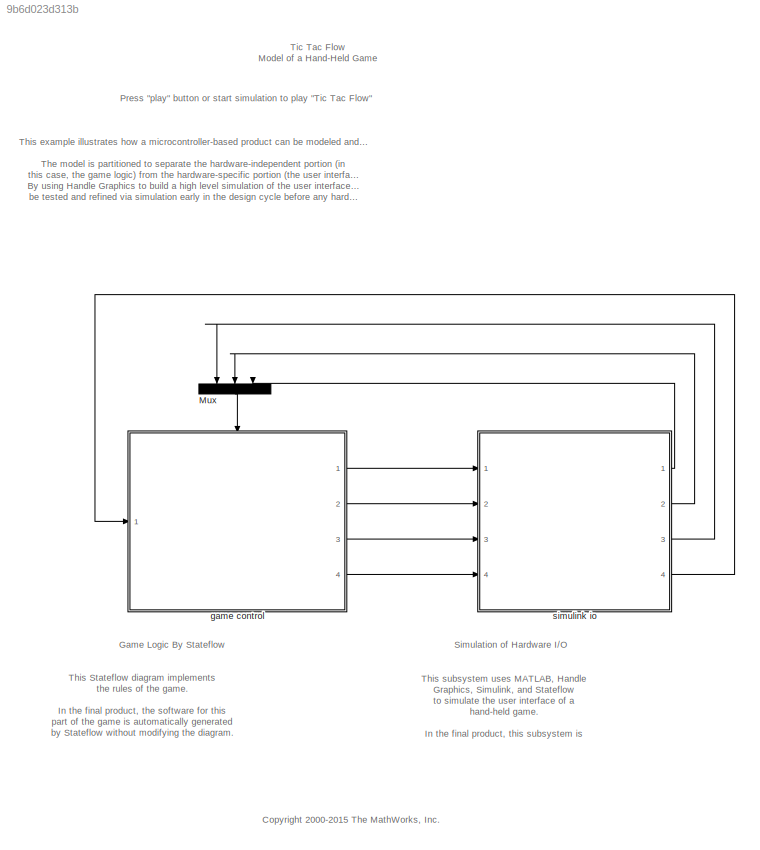
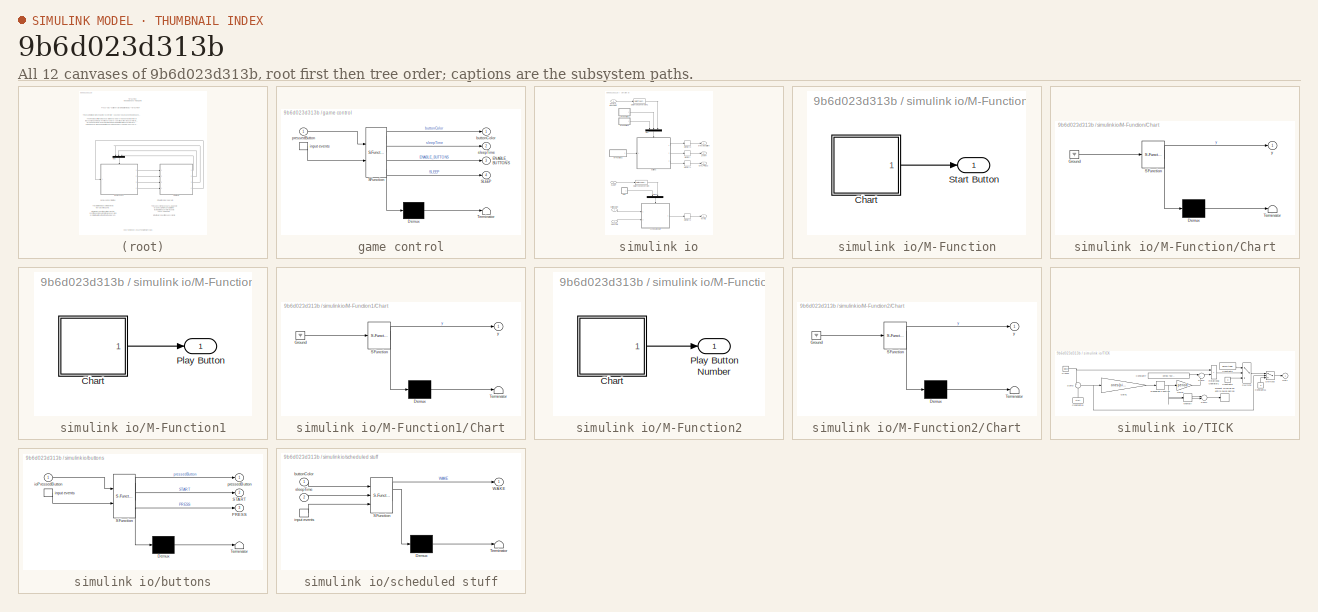
[diagram: thumbnail index - all 12 canvases of the model, root first then tree order]
MODEL slx_9b6d023d313b
KIND model
CONFIG AbsTol = auto
CONFIG EnableMultiTasking = on
CONFIG FixedStep = auto
CONFIG MaxStep = auto
CONFIG MinStep = auto
CONFIG RelTol = 1e-3
CONFIG SampleTimeConstraint = Unconstrained
CONFIG Solver = VariableStepDiscrete
CONFIG SolverName = VariableStepDiscrete
CONFIG StartTime = 0.0
CONFIG StopTime = inf
BLOCK [Mux] Mux
  DisplayOption = bar
  Inputs = 3
  Ports = [3, 1]
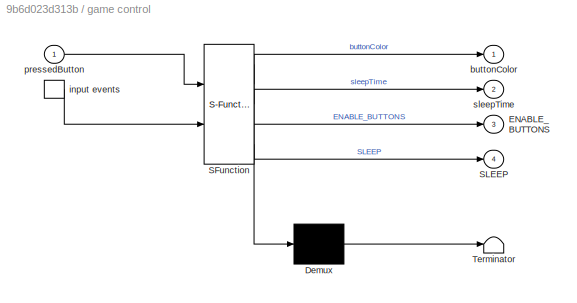
BLOCK [SubSystem] game control
  ErrorFcn = Stateflow.Translate.translate
  PermitHierarchicalResolution = ExplicitOnly
  Ports = [1, 4, 0, 1]
  RequestExecContextInheritance = off
  SFBlockType = Chart
  TreatAsAtomicUnit = on
  Variant = off
BLOCK [Demux] game control/ Demux 
  Outputs = 1
  Ports = [1, 1]
BLOCK [S-Function] game control/ SFunction 
  EnableBusSupport = off
  FunctionName = sf_sfun
  PortCounts = [2 5]
  Ports = [2, 5]
  SFcnIsStateOwnerBlock = off
  SFunctionDeploymentMode = off
  Tag = Stateflow S-Function sf_tictacflow 1
BLOCK [Terminator] game control/ Terminator 
BLOCK [TriggerPort] game control/ input events 
  Ports = [0, 1]
  ShowOutputPort = on
  TriggerType = either
  VariantControl = Variant
BLOCK [Outport] game control/ENABLE_BUTTONS
  IconDisplay = Port number
  Port = 3
BLOCK [Outport] game control/SLEEP
  IconDisplay = Port number
  Port = 4
BLOCK [Outport] game control/buttonColor
  IconDisplay = Port number
BLOCK [Inport] game control/pressedButton
  IconDisplay = Port number
BLOCK [Outport] game control/sleepTime
  IconDisplay = Port number
  Port = 2
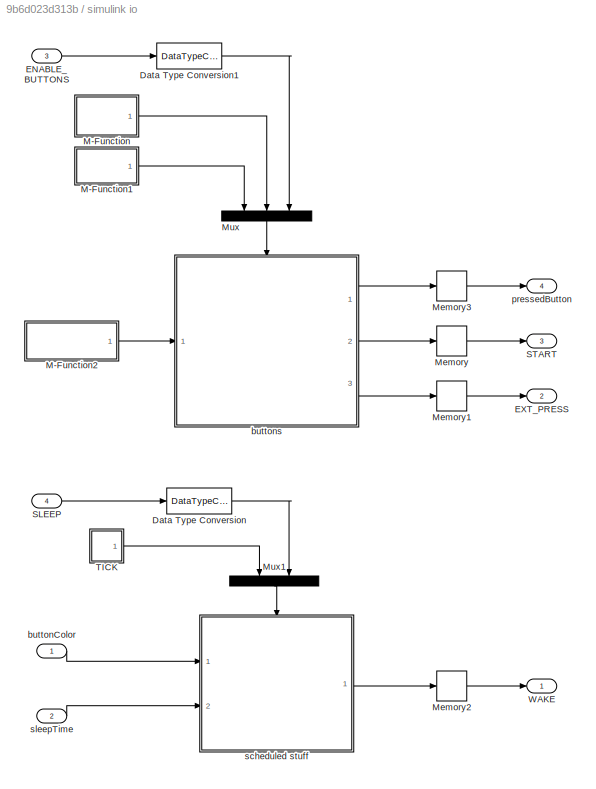
BLOCK [SubSystem] simulink io
  Ports = [4, 4]
  RequestExecContextInheritance = off
  StopFcn = fig = findobj(0, 'Name', 'Tic Tac Flow'); if ishandle(fig); delete(fig); end;
  Variant = off
BLOCK [DataTypeConversion] simulink io/Data Type Conversion
  OutDataTypeStr = double
  RndMeth = Floor
  SaturateOnIntegerOverflow = off
BLOCK [DataTypeConversion] simulink io/Data Type Conversion1
  OutDataTypeStr = double
  RndMeth = Floor
  SaturateOnIntegerOverflow = off
BLOCK [Inport] simulink io/ENABLE_BUTTONS
  IconDisplay = Port number
  Port = 3
BLOCK [Outport] simulink io/EXT_PRESS
  IconDisplay = Port number
  Port = 2
BLOCK [SubSystem] simulink io/M-Function
  Ports = [0, 1]
  RequestExecContextInheritance = off
  Variant = off
BLOCK [SubSystem] simulink io/M-Function/Chart
  ErrorFcn = Stateflow.Translate.translate
  PermitHierarchicalResolution = ExplicitOnly
  Ports = [0, 1]
  RequestExecContextInheritance = off
  SFBlockType = Chart
  TreatAsAtomicUnit = on
  Variant = off
BLOCK [Demux] simulink io/M-Function/Chart/ Demux 
  Outputs = 1
  Ports = [1, 1]
BLOCK [Ground] simulink io/M-Function/Chart/ Ground 
BLOCK [S-Function] simulink io/M-Function/Chart/ SFunction 
  EnableBusSupport = off
  FunctionName = sf_sfun
  PortCounts = [1 2]
  Ports = [1, 2]
  SFcnIsStateOwnerBlock = off
  SFunctionDeploymentMode = off
  Tag = Stateflow S-Function sf_tictacflow 7
BLOCK [Terminator] simulink io/M-Function/Chart/ Terminator 
BLOCK [Outport] simulink io/M-Function/Chart/y
  IconDisplay = Port number
BLOCK [Outport] simulink io/M-Function/Start Button
  IconDisplay = Port number
BLOCK [SubSystem] simulink io/M-Function1
  Ports = [0, 1]
  RequestExecContextInheritance = off
  Variant = off
BLOCK [SubSystem] simulink io/M-Function1/Chart
  ErrorFcn = Stateflow.Translate.translate
  PermitHierarchicalResolution = ExplicitOnly
  Ports = [0, 1]
  RequestExecContextInheritance = off
  SFBlockType = Chart
  TreatAsAtomicUnit = on
  Variant = off
BLOCK [Demux] simulink io/M-Function1/Chart/ Demux 
  Outputs = 1
  Ports = [1, 1]
BLOCK [Ground] simulink io/M-Function1/Chart/ Ground 
BLOCK [S-Function] simulink io/M-Function1/Chart/ SFunction 
  EnableBusSupport = off
  FunctionName = sf_sfun
  PortCounts = [1 2]
  Ports = [1, 2]
  SFcnIsStateOwnerBlock = off
  SFunctionDeploymentMode = off
  Tag = Stateflow S-Function sf_tictacflow 4
BLOCK [Terminator] simulink io/M-Function1/Chart/ Terminator 
BLOCK [Outport] simulink io/M-Function1/Chart/y
  IconDisplay = Port number
BLOCK [Outport] simulink io/M-Function1/Play Button
  IconDisplay = Port number
BLOCK [SubSystem] simulink io/M-Function2
  Ports = [0, 1]
  RequestExecContextInheritance = off
  Variant = off
BLOCK [SubSystem] simulink io/M-Function2/Chart
  ErrorFcn = Stateflow.Translate.translate
  PermitHierarchicalResolution = ExplicitOnly
  Ports = [0, 1]
  RequestExecContextInheritance = off
  SFBlockType = Chart
  TreatAsAtomicUnit = on
  Variant = off
BLOCK [Demux] simulink io/M-Function2/Chart/ Demux 
  Outputs = 1
  Ports = [1, 1]
BLOCK [Ground] simulink io/M-Function2/Chart/ Ground 
BLOCK [S-Function] simulink io/M-Function2/Chart/ SFunction 
  EnableBusSupport = off
  FunctionName = sf_sfun
  PortCounts = [1 2]
  Ports = [1, 2]
  SFcnIsStateOwnerBlock = off
  SFunctionDeploymentMode = off
  Tag = Stateflow S-Function sf_tictacflow 5
BLOCK [Terminator] simulink io/M-Function2/Chart/ Terminator 
BLOCK [Outport] simulink io/M-Function2/Chart/y
  IconDisplay = Port number
BLOCK [Outport] simulink io/M-Function2/Play Button Number
  IconDisplay = Port number
BLOCK [Memory] simulink io/Memory
BLOCK [Memory] simulink io/Memory1
BLOCK [Memory] simulink io/Memory2
BLOCK [Memory] simulink io/Memory3
BLOCK [Mux] simulink io/Mux
  DisplayOption = bar
  Inputs = 3
  Ports = [3, 1]
BLOCK [Mux] simulink io/Mux1
  DisplayOption = bar
  Inputs = 2
  Ports = [2, 1]
BLOCK [Inport] simulink io/SLEEP
  IconDisplay = Port number
  Port = 4
BLOCK [Outport] simulink io/START
  IconDisplay = Port number
  Port = 3
BLOCK [SubSystem] simulink io/TICK
  Ports = [0, 1]
  RequestExecContextInheritance = off
  Variant = off
BLOCK [Clock] simulink io/TICK/Clock1
BLOCK [Constant] simulink io/TICK/Constant10
  Value = start
BLOCK [Constant] simulink io/TICK/Constant11
  Value = 0
BLOCK [Constant] simulink io/TICK/Constant7
  Value = period.*duty/100 + start
BLOCK [Constant] simulink io/TICK/Constant8
  Value = 0
BLOCK [Constant] simulink io/TICK/Constant9
  Value = amplitude
BLOCK [Gain] simulink io/TICK/Gain1
  Gain = ones(size(period))./period
BLOCK [Gain] simulink io/TICK/Gain2
  Gain = period
BLOCK [Memory] simulink io/TICK/Memory
BLOCK [Outport] simulink io/TICK/Out1
  IconDisplay = Port number
BLOCK [RelationalOperator] simulink io/TICK/Relational Operator1
  Operator = <
  Ports = [2, 1]
BLOCK [Rounding] simulink io/TICK/Rounding Function
BLOCK [Sum] simulink io/TICK/Sum2
  IconShape = round
  Inputs = |++
  Ports = [2, 1]
BLOCK [Sum] simulink io/TICK/Sum3
  IconShape = round
  Inputs = +-
  Ports = [2, 1]
BLOCK [Sum] simulink io/TICK/Sum4
  IconShape = round
  Inputs = |-+
  Ports = [2, 1]
BLOCK [Switch] simulink io/TICK/Switch2
  Threshold = 0.5
BLOCK [Switch] simulink io/TICK/Switch3
BLOCK [HitCross] simulink io/TICK/prevent missing an entire pulse period
  HitCrossingOffset = 1
  Ports = [1]
  ShowOutputPort = off
BLOCK [Outport] simulink io/WAKE
  IconDisplay = Port number
BLOCK [Inport] simulink io/buttonColor
  IconDisplay = Port number
BLOCK [SubSystem] simulink io/buttons
  ErrorFcn = Stateflow.Translate.translate
  PermitHierarchicalResolution = ExplicitOnly
  Ports = [1, 3, 0, 1]
  RequestExecContextInheritance = off
  SFBlockType = Chart
  TreatAsAtomicUnit = on
  Variant = off
BLOCK [Demux] simulink io/buttons/ Demux 
  Outputs = 1
  Ports = [1, 1]
BLOCK [S-Function] simulink io/buttons/ SFunction 
  EnableBusSupport = off
  FunctionName = sf_sfun
  PortCounts = [2 4]
  Ports = [2, 4]
  SFcnIsStateOwnerBlock = off
  SFunctionDeploymentMode = off
  Tag = Stateflow S-Function sf_tictacflow 2
BLOCK [Terminator] simulink io/buttons/ Terminator 
BLOCK [TriggerPort] simulink io/buttons/ input events 
  Ports = [0, 1]
  ShowOutputPort = on
  TriggerType = either
  VariantControl = Variant
BLOCK [Outport] simulink io/buttons/PRESS
  IconDisplay = Port number
  Port = 3
BLOCK [Outport] simulink io/buttons/START
  IconDisplay = Port number
  Port = 2
BLOCK [Inport] simulink io/buttons/ioPressedButton
  IconDisplay = Port number
BLOCK [Outport] simulink io/buttons/pressedButton
  IconDisplay = Port number
BLOCK [Outport] simulink io/pressedButton
  IconDisplay = Port number
  Port = 4
BLOCK [SubSystem] simulink io/scheduled stuff
  ErrorFcn = Stateflow.Translate.translate
  PermitHierarchicalResolution = ExplicitOnly
  Ports = [2, 1, 0, 1]
  RequestExecContextInheritance = off
  SFBlockType = Chart
  TreatAsAtomicUnit = on
  Variant = off
BLOCK [Demux] simulink io/scheduled stuff/ Demux 
  Outputs = 1
  Ports = [1, 1]
BLOCK [S-Function] simulink io/scheduled stuff/ SFunction 
  EnableBusSupport = off
  FunctionName = sf_sfun
  PortCounts = [3 2]
  Ports = [3, 2]
  SFcnIsStateOwnerBlock = off
  SFunctionDeploymentMode = off
  Tag = Stateflow S-Function sf_tictacflow 3
BLOCK [Terminator] simulink io/scheduled stuff/ Terminator 
BLOCK [TriggerPort] simulink io/scheduled stuff/ input events 
  Ports = [0, 1]
  ShowOutputPort = on
  TriggerType = either
  VariantControl = Variant
BLOCK [Outport] simulink io/scheduled stuff/WAKE
  IconDisplay = Port number
BLOCK [Inport] simulink io/scheduled stuff/buttonColor
  IconDisplay = Port number
BLOCK [Inport] simulink io/scheduled stuff/sleepTime
  IconDisplay = Port number
  Port = 2
BLOCK [Inport] simulink io/sleepTime
  IconDisplay = Port number
  Port = 2
ANNOTATION (root): <copyright redacted>
ANNOTATION (root): Game Logic By Stateflow
ANNOTATION (root): Press "play" button or start simulation to play "Tic Tac Flow"
ANNOTATION (root): Simulation of Hardware I/O
ANNOTATION (root): This Stateflow diagram implements the rules of the game. In the final product, the software for this part of the game is automatically generated by Stateflow without modifying the diagram.
ANNOTATION (root): This example illustrates how a microcontroller-based product can be modeled and implemented using Stateflow. The model is partitioned to separate the hardware-independent portion (in this case, the game logic) from the hardware-specific portion (the user interface). By using Handle Graphics to build a high level simulation of the user interface, the product concept can be tested and refined via si...<+294ch>
ANNOTATION (root): This subsystem uses MATLAB, Handle Graphics, Simulink, and Stateflow to simulate the user interface of a hand-held game. In the final product, this subsystem is replaced by electronic hardware and low level driver software.
ANNOTATION (root): Tic Tac Flow Model of a Hand-Held Game
LINE Mux:1 -> game control:trigger
LINE game control:1 -> simulink io:1
LINE game control:2 -> simulink io:2
LINE game control:3 -> simulink io:3
LINE game control:4 -> simulink io:4
LINE simulink io/Data Type Conversion1:1 -> simulink io/Mux:3
LINE simulink io/Data Type Conversion:1 -> simulink io/Mux1:2
LINE simulink io/ENABLE_BUTTONS:1 -> simulink io/Data Type Conversion1:1
LINE simulink io/M-Function/Chart:1 -> simulink io/M-Function/Start Button:1
LINE simulink io/M-Function1/Chart:1 -> simulink io/M-Function1/Play Button:1
LINE simulink io/M-Function1:1 -> simulink io/Mux:1
LINE simulink io/M-Function2/Chart:1 -> simulink io/M-Function2/Play Button Number:1
LINE simulink io/M-Function2:1 -> simulink io/buttons:1
LINE simulink io/M-Function:1 -> simulink io/Mux:2
LINE simulink io/Memory1:1 -> simulink io/EXT_PRESS:1
LINE simulink io/Memory2:1 -> simulink io/WAKE:1
LINE simulink io/Memory3:1 -> simulink io/pressedButton:1
LINE simulink io/Memory:1 -> simulink io/START:1
LINE simulink io/Mux1:1 -> simulink io/scheduled stuff:trigger
LINE simulink io/Mux:1 -> simulink io/buttons:trigger
LINE simulink io/SLEEP:1 -> simulink io/Data Type Conversion:1
NET simulink io/TICK/Clock1:1 -> simulink io/TICK/Relational Operator1:1, simulink io/TICK/Sum3:1
LINE simulink io/TICK/Constant10:1 -> simulink io/TICK/Sum3:2
LINE simulink io/TICK/Constant11:1 -> simulink io/TICK/Switch3:3
LINE simulink io/TICK/Constant7:1 -> simulink io/TICK/Sum2:1
LINE simulink io/TICK/Constant8:1 -> simulink io/TICK/Switch2:3
LINE simulink io/TICK/Constant9:1 -> simulink io/TICK/Switch2:1
LINE simulink io/TICK/Gain1:1 -> simulink io/TICK/Rounding Function:1
LINE simulink io/TICK/Gain2:1 -> simulink io/TICK/Sum2:2
LINE simulink io/TICK/Memory:1 -> simulink io/TICK/Sum4:1
LINE simulink io/TICK/Relational Operator1:1 -> simulink io/TICK/Switch2:2
NET simulink io/TICK/Rounding Function:1 -> simulink io/TICK/Gain2:1, simulink io/TICK/Memory:1, simulink io/TICK/Sum4:2
LINE simulink io/TICK/Sum2:1 -> simulink io/TICK/Relational Operator1:2
NET simulink io/TICK/Sum3:1 -> simulink io/TICK/Gain1:1, simulink io/TICK/Switch3:2
LINE simulink io/TICK/Sum4:1 -> simulink io/TICK/prevent missing an entire pulse period:1
LINE simulink io/TICK/Switch2:1 -> simulink io/TICK/Switch3:1
LINE simulink io/TICK/Switch3:1 -> simulink io/TICK/Out1:1
LINE simulink io/TICK:1 -> simulink io/Mux1:1
LINE simulink io/buttonColor:1 -> simulink io/scheduled stuff:1
LINE simulink io/buttons:1 -> simulink io/Memory3:1
LINE simulink io/buttons:2 -> simulink io/Memory:1
LINE simulink io/buttons:3 -> simulink io/Memory1:1
LINE simulink io/scheduled stuff:1 -> simulink io/Memory2:1
LINE simulink io/sleepTime:1 -> simulink io/scheduled stuff:2
LINE simulink io:1 -> Mux:3
LINE simulink io:2 -> Mux:2
LINE simulink io:3 -> Mux:1
LINE simulink io:4 -> game control:1
note: NET lines group one-source signal fan-out (src -> all destinations, sorted); 1:1 wires keep LINE
CHART game control states=65 transitions=146
  STATE_LABEL 'button_7'
  STATE_LABEL 'disabled'
  STATE_LABEL 'enabled\nbuttonColor[thisButton] = DARK;'
  STATE_LABEL 'active'
  STATE_LABEL 'red\nbuttonColor[thisButton] = RED;\nTURN;'
  STATE_LABEL 'green\nbuttonColor[thisButton] = GREEN;\nTURN;'
  STATE_LABEL '[in(turn.green)]'
  STATE_LABEL 'START'
  STATE_LABEL 'GAME_OVER'
  STATE_LABEL 'GAME_OVER [in(turn.green)]\n{buttonColor[thisButton] = DIM_RED; }'
  STATE_LABEL 'GAME_OVER [in(turn.red)]\n{buttonColor[thisButton] = DIM_GREEN; }'
  STATE_LABEL 'at(7,TURN)'
  STATE_LABEL 'PRESS'
  STATE_LABEL 'disabled'
  STATE_LABEL 'enabled\nbuttonColor[thisButton] = DARK;'
  STATE_LABEL 'active'
  STATE_LABEL 'red\nbuttonColor[thisButton] = RED;\nTURN;'
  STATE_LABEL 'green\nbuttonColor[thisButton] = GREEN;\nTURN;'
  STATE_LABEL '[in(turn.green)]'
  STATE_LABEL 'red\nbuttonColor[thisButton] = RED;\nTURN;'
  STATE_LABEL 'green\nbuttonColor[thisButton] = GREEN;\nTURN;'
  STATE_LABEL 'button_0'
  STATE_LABEL 'disabled'
  STATE_LABEL 'enabled\nbuttonColor[thisButton] = DARK;'
  STATE_LABEL 'active'
  STATE_LABEL 'red\nbuttonColor[thisButton] = RED;\nTURN;'
  STATE_LABEL 'green\nbuttonColor[thisButton] = GREEN;\nTURN;'
  STATE_LABEL '[in(turn.green)]'
  STATE_LABEL 'START'
  STATE_LABEL 'GAME_OVER'
  STATE_LABEL 'GAME_OVER [in(turn.green)]\n{buttonColor[thisButton] = DIM_RED; }'
  STATE_LABEL 'GAME_OVER [in(turn.red)]\n{buttonColor[thisButton] = DIM_GREEN; }'
  STATE_LABEL 'at(7,TURN)'
  STATE_LABEL 'PRESS'
  STATE_LABEL 'disabled'
  STATE_LABEL 'enabled\nbuttonColor[thisButton] = DARK;'
  STATE_LABEL 'active'
  STATE_LABEL 'red\nbuttonColor[thisButton] = RED;\nTURN;'
  STATE_LABEL 'green\nbuttonColor[thisButton] = GREEN;\nTURN;'
  STATE_LABEL '[in(turn.green)]'
CHART simulink io/buttons states=1 transitions=7
  STATE_LABEL "io\nen:\n  figH = ml.sf_tictacflowgui('fig');\n  ml.set(figH,'Pointer','arrow');\n  /* note mapping between magic numbers and button location:\n     buttonH[magic] = ml.play_button_magic(figH,location,magic);  */\n  buttonH0 = ml.sf_tictacflowgui('play_button',figH,1,0);\n  buttonH1 = ml.sf_tictacflowgui('play_button',figH,8,1);\n  buttonH2 = ml.sf_tictacflowgui('play_button',figH,3,2);\n  buttonH3 = ml.sf...<+445ch>"
  STATE_LABEL 'IO_START\n{\n   pressedButton = 0;\n   START;\n}'
  STATE_LABEL "ENABLE_BUTTONS\n{\n  ml.set(buttonH0,'Enable','On');\n  ml.set(buttonH1,'Enable','On');\n  ml.set(buttonH2,'Enable','On');\n  ml.set(buttonH3,'Enable','On');\n  ml.set(buttonH4,'Enable','On');\n  ml.set(buttonH5,'Enable','On');\n  ml.set(buttonH6,'Enable','On');\n  ml.set(buttonH7,'Enable','On');\n  ml.set(buttonH8,'Enable','On');\n}"
  STATE_LABEL "IO_PRESS\n{\n  ml.set(buttonH0,'Enable','Off');\n  ml.set(buttonH1,'Enable','Off');\n  ml.set(buttonH2,'Enable','Off');\n  ml.set(buttonH3,'Enable','Off');\n  ml.set(buttonH4,'Enable','Off');\n  ml.set(buttonH5,'Enable','Off');\n  ml.set(buttonH6,'Enable','Off');\n  ml.set(buttonH7,'Enable','Off');\n  ml.set(buttonH8,'Enable','Off');\n  pressedButton = ioPressedButton;\n  PRESS;\n}"
CHART simulink io/scheduled stuff states=5 transitions=9
  STATE_LABEL 'stop'
  STATE_LABEL "[ !ml.ishandle(figH) ]\n{ ml.set_param('sf_tictacflow','simulationcommand','stop'); }"
  STATE_LABEL 'update_LEDs'
  STATE_LABEL "TICK\n[ml.ishandle(figH)]\n{\n  ml.sf_tictacflowgui('set_button_color',buttonH0,buttonColor[0]);\n  ml.sf_tictacflowgui('set_button_color',buttonH1,buttonColor[1]);\n  ml.sf_tictacflowgui('set_button_color',buttonH2,buttonColor[2]);\n  ml.sf_tictacflowgui('set_button_color',buttonH3,buttonColor[3]);\n  ml.sf_tictacflowgui('set_button_color',buttonH4,buttonColor[4]);\n  ml.sf_tictacflowgui('set_button_colo...<+301ch>"
  STATE_LABEL 'sleep'
  STATE_LABEL 'awake'
  STATE_LABEL "asleep\nentry:\nml.set(figH,'Pointer','watch');\nexit:\nml.set(figH,'Pointer','arrow');"
  STATE_LABEL 'SLEEP'
  STATE_LABEL 'after(sleepTime,TICK)\n{ WAKE; }'
  STATE_LABEL 'awake'
  STATE_LABEL "asleep\nentry:\nml.set(figH,'Pointer','watch');\nexit:\nml.set(figH,'Pointer','arrow');"
CHART simulink io/M-Function1/Chart states=0 transitions=1
CHART simulink io/M-Function2/Chart states=0 transitions=1
CHART simulink io/M-Function/Chart states=0 transitions=1
